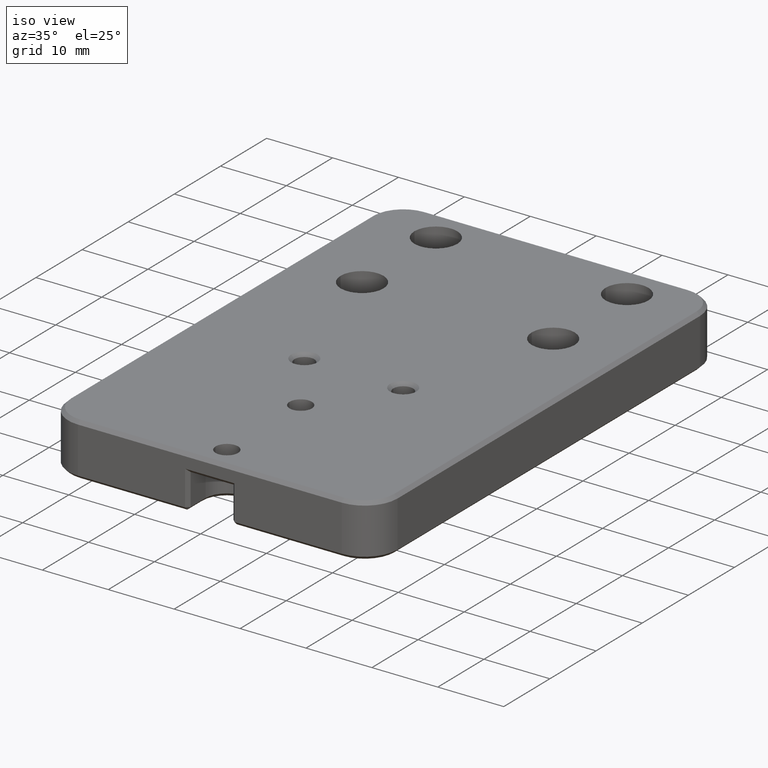
[diagram: clean part render]
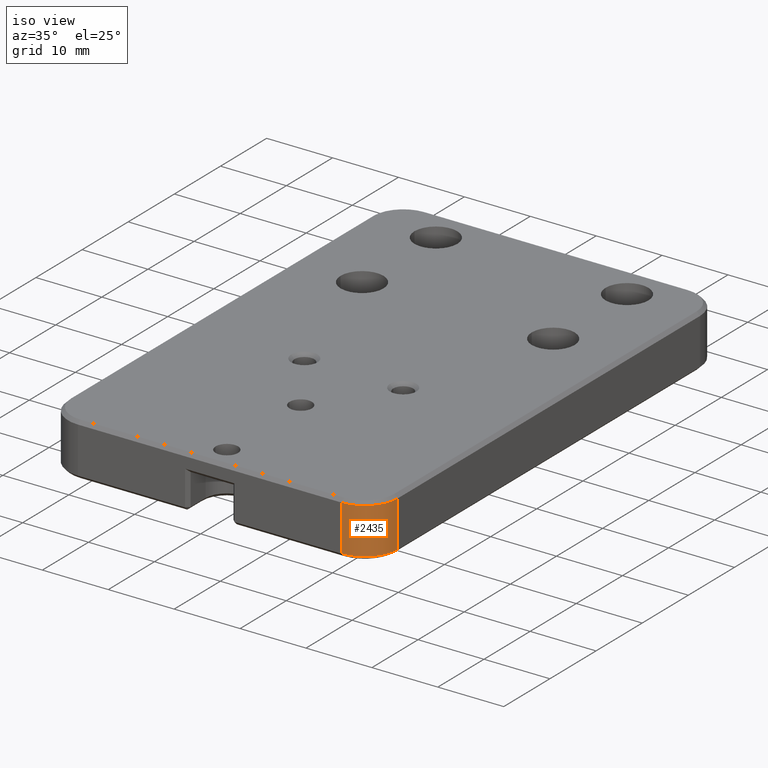
[diagram: same view with one face highlighted and labeled with its STEP entity id]
A machine part, iso view. The second image highlights one B-rep face of the part: STEP entity #2435.
In plain terms, the highlighted cylindrical surface (partial cylindrical patch) has radius 5 mm, axis along (0, 0, -1).
Its self-contained STEP definition (entity closure, byte-faithful):
#8 = CARTESIAN_POINT ( 'NONE',  ( 20.00000000000000000, -42.99999999999998579, 8.000000000000000000 ) ) ;
#30 = EDGE_CURVE ( 'NONE', #283, #509, #2216, .T. ) ;
#38 = DIRECTION ( 'NONE',  ( 1.000000000000000000, 0.0000000000000000000, 0.0000000000000000000 ) ) ;
#259 = VECTOR ( 'NONE', #321, 1000.000000000000000 ) ;
#274 = ORIENTED_EDGE ( 'NONE', *, *, #30, .F. ) ;
#283 = VERTEX_POINT ( 'NONE', #764 ) ;
#303 = ORIENTED_EDGE ( 'NONE', *, *, #1887, .F. ) ;
#310 = CARTESIAN_POINT ( 'NONE',  ( 20.00000000000000000, -42.99999999999998579, 0.5000000000000004441 ) ) ;
#321 = DIRECTION ( 'NONE',  ( -0.0000000000000000000, -0.0000000000000000000, 1.000000000000000000 ) ) ;
#398 = EDGE_LOOP ( 'NONE', ( #303, #667, #274, #1049 ) ) ;
#409 = DIRECTION ( 'NONE',  ( -1.000000000000000000, 0.0000000000000000000, 0.0000000000000000000 ) ) ;
#473 = VECTOR ( 'NONE', #2348, 1000.000000000000000 ) ;
#476 = VERTEX_POINT ( 'NONE', #1471 ) ;
#509 = VERTEX_POINT ( 'NONE', #865 ) ;
#532 = CIRCLE ( 'NONE', #1939, 5.000000000000000888 ) ;
#585 = FACE_OUTER_BOUND ( 'NONE', #398, .T. ) ;
#667 = ORIENTED_EDGE ( 'NONE', *, *, #1901, .T. ) ;
#673 = LINE ( 'NONE', #1463, #259 ) ;
#750 = DIRECTION ( 'NONE',  ( 0.0000000000000000000, 0.0000000000000000000, -1.000000000000000000 ) ) ;
#764 = CARTESIAN_POINT ( 'NONE',  ( 25.00000000000000000, -42.99999999999998579, 7.499999999999985789 ) ) ;
#780 = CARTESIAN_POINT ( 'NONE',  ( 20.00000000000000000, -42.99999999999998579, 7.499999999999985789 ) ) ;
#863 = CARTESIAN_POINT ( 'NONE',  ( 20.00000000000000355, -47.99999999999998579, 7.499999999999985789 ) ) ;
#865 = CARTESIAN_POINT ( 'NONE',  ( 25.00000000000000000, -42.99999999999998579, 0.5000000000000004441 ) ) ;
#876 = VERTEX_POINT ( 'NONE', #863 ) ;
#1049 = ORIENTED_EDGE ( 'NONE', *, *, #2014, .T. ) ;
#1069 = DIRECTION ( 'NONE',  ( 1.000000000000000000, 0.0000000000000000000, 0.0000000000000000000 ) ) ;
#1278 = DIRECTION ( 'NONE',  ( 0.0000000000000000000, 0.0000000000000000000, 1.000000000000000000 ) ) ;
#1378 = CYLINDRICAL_SURFACE ( 'NONE', #1381, 5.000000000000000888 ) ;
#1381 = AXIS2_PLACEMENT_3D ( 'NONE', #8, #750, #409 ) ;
#1463 = CARTESIAN_POINT ( 'NONE',  ( 20.00000000000000355, -47.99999999999998579, 8.000000000000000000 ) ) ;
#1471 = CARTESIAN_POINT ( 'NONE',  ( 20.00000000000000355, -47.99999999999998579, 0.5000000000000004441 ) ) ;
#1735 = DIRECTION ( 'NONE',  ( 0.0000000000000000000, 0.0000000000000000000, -1.000000000000000000 ) ) ;
#1736 = CIRCLE ( 'NONE', #2271, 5.000000000000000888 ) ;
#1887 = EDGE_CURVE ( 'NONE', #476, #876, #673, .T. ) ;
#1901 = EDGE_CURVE ( 'NONE', #476, #509, #532, .T. ) ;
#1939 = AXIS2_PLACEMENT_3D ( 'NONE', #310, #1278, #1069 ) ;
#1953 = CARTESIAN_POINT ( 'NONE',  ( 25.00000000000000000, -42.99999999999998579, 8.000000000000000000 ) ) ;
#2014 = EDGE_CURVE ( 'NONE', #283, #876, #1736, .T. ) ;
#2216 = LINE ( 'NONE', #1953, #473 ) ;
#2271 = AXIS2_PLACEMENT_3D ( 'NONE', #780, #1735, #38 ) ;
#2348 = DIRECTION ( 'NONE',  ( 0.0000000000000000000, 0.0000000000000000000, -1.000000000000000000 ) ) ;
#2435 = ADVANCED_FACE ( 'NONE', ( #585 ), #1378, .T. ) ;